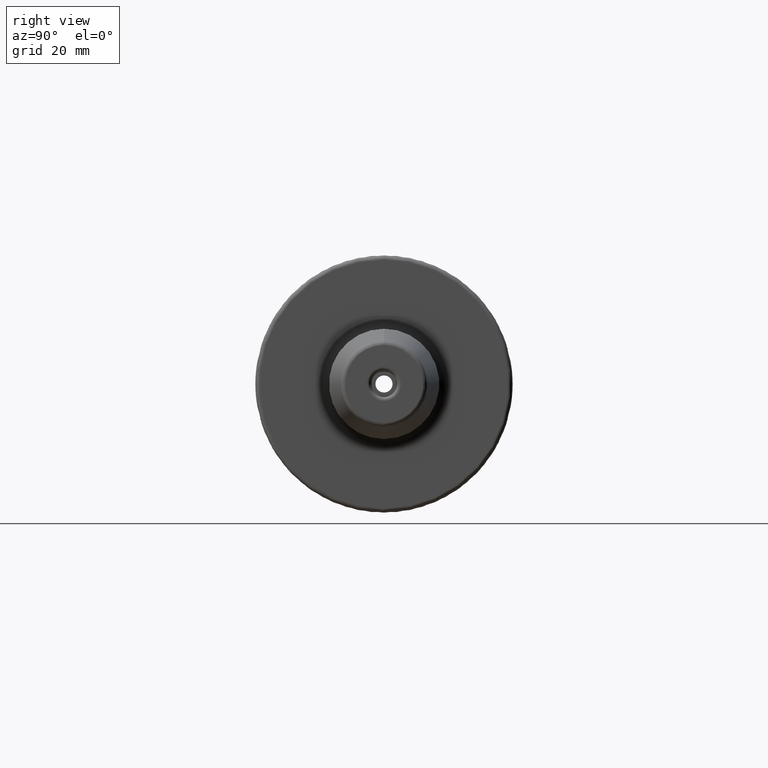
[diagram: clean part render]
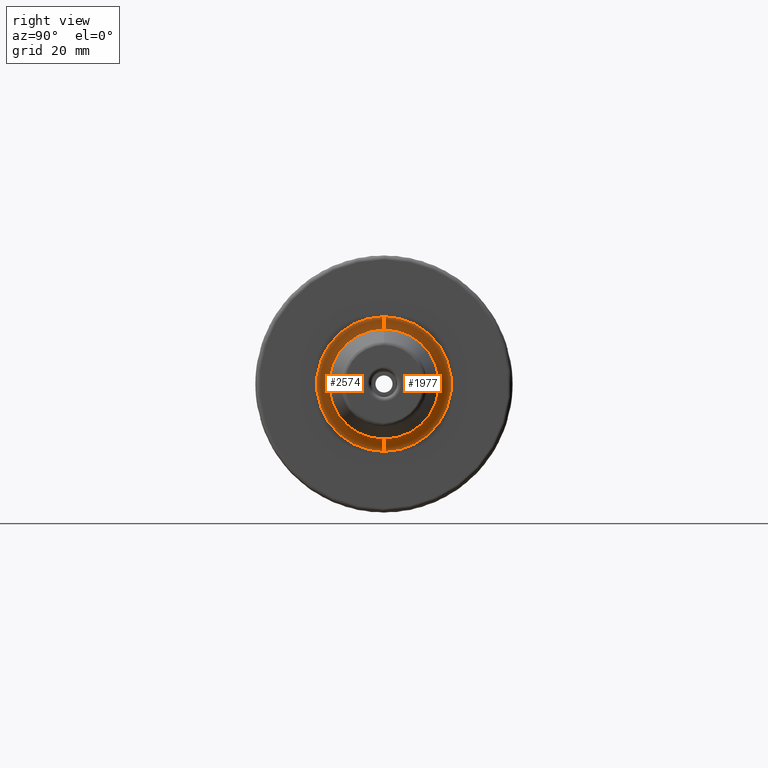
[diagram: same view with one multi-face feature highlighted, each face labeled with its STEP entity id]
A machine part, right view. The highlighted faces form ONE feature: a constant-radius fillet chain: 2 tangent blend faces with common blend radius 3 mm. The faces share edges in the B-rep.
Their STEP definitions:
[1] entity #1977 (Torus):
#468=CARTESIAN_POINT('',(3.E1,0.E0,0.E0));
#469=DIRECTION('',(1.E0,0.E0,0.E0));
#470=DIRECTION('',(0.E0,0.E0,-1.E0));
#471=AXIS2_PLACEMENT_3D('',#468,#469,#470);
#483=CARTESIAN_POINT('',(2.7E1,0.E0,0.E0));
#484=DIRECTION('',(1.E0,0.E0,0.E0));
#485=DIRECTION('',(0.E0,0.E0,-1.E0));
#486=AXIS2_PLACEMENT_3D('',#483,#484,#485);
#993=CARTESIAN_POINT('',(3.E1,0.E0,1.65E1));
#994=DIRECTION('',(0.E0,1.E0,0.E0));
#995=DIRECTION('',(0.E0,0.E0,-1.E0));
#996=AXIS2_PLACEMENT_3D('',#993,#994,#995);
#1003=CARTESIAN_POINT('',(3.E1,0.E0,-1.65E1));
#1004=DIRECTION('',(0.E0,-1.E0,0.E0));
#1005=DIRECTION('',(0.E0,0.E0,1.E0));
#1006=AXIS2_PLACEMENT_3D('',#1003,#1004,#1005);
#1213=CARTESIAN_POINT('',(3.E1,0.E0,-1.35E1));
#1214=VERTEX_POINT('',#1213);
#1235=CARTESIAN_POINT('',(3.E1,0.E0,1.35E1));
#1236=VERTEX_POINT('',#1235);
#1245=CARTESIAN_POINT('',(2.7E1,0.E0,-1.65E1));
#1246=CARTESIAN_POINT('',(2.7E1,0.E0,1.65E1));
#1247=VERTEX_POINT('',#1245);
#1248=VERTEX_POINT('',#1246);
#1963=CARTESIAN_POINT('',(3.E1,0.E0,0.E0));
#1964=DIRECTION('',(1.E0,0.E0,0.E0));
#1965=DIRECTION('',(0.E0,0.E0,1.E0));
#1966=AXIS2_PLACEMENT_3D('',#1963,#1964,#1965);
#1967=TOROIDAL_SURFACE('',#1966,1.65E1,3.E0);
#1969=ORIENTED_EDGE('',*,*,#1968,.F.);
#1971=ORIENTED_EDGE('',*,*,#1970,.F.);
#1972=ORIENTED_EDGE('',*,*,#1958,.T.);
#1974=ORIENTED_EDGE('',*,*,#1973,.T.);
#1975=EDGE_LOOP('',(#1969,#1971,#1972,#1974));
#1976=FACE_OUTER_BOUND('',#1975,.F.);
#1977=ADVANCED_FACE('',(#1976),#1967,.F.);
#472=CIRCLE('',#471,1.35E1);
#487=CIRCLE('',#486,1.65E1);
#997=CIRCLE('',#996,3.E0);
#1007=CIRCLE('',#1006,3.E0);
#1958=EDGE_CURVE('',#1214,#1236,#472,.T.);
#1968=EDGE_CURVE('',#1247,#1248,#487,.T.);
#1970=EDGE_CURVE('',#1214,#1247,#1007,.T.);
#1973=EDGE_CURVE('',#1236,#1248,#997,.T.);
[2] entity #2574 (Torus):
#488=CARTESIAN_POINT('',(2.7E1,0.E0,0.E0));
#489=DIRECTION('',(1.E0,0.E0,0.E0));
#490=DIRECTION('',(0.E0,0.E0,1.E0));
#491=AXIS2_PLACEMENT_3D('',#488,#489,#490);
#993=CARTESIAN_POINT('',(3.E1,0.E0,1.65E1));
#994=DIRECTION('',(0.E0,1.E0,0.E0));
#995=DIRECTION('',(0.E0,0.E0,-1.E0));
#996=AXIS2_PLACEMENT_3D('',#993,#994,#995);
#998=CARTESIAN_POINT('',(3.E1,0.E0,0.E0));
#999=DIRECTION('',(-1.E0,0.E0,0.E0));
#1000=DIRECTION('',(0.E0,0.E0,-1.E0));
#1001=AXIS2_PLACEMENT_3D('',#998,#999,#1000);
#1003=CARTESIAN_POINT('',(3.E1,0.E0,-1.65E1));
#1004=DIRECTION('',(0.E0,-1.E0,0.E0));
#1005=DIRECTION('',(0.E0,0.E0,1.E0));
#1006=AXIS2_PLACEMENT_3D('',#1003,#1004,#1005);
#1213=CARTESIAN_POINT('',(3.E1,0.E0,-1.35E1));
#1214=VERTEX_POINT('',#1213);
#1235=CARTESIAN_POINT('',(3.E1,0.E0,1.35E1));
#1236=VERTEX_POINT('',#1235);
#1245=CARTESIAN_POINT('',(2.7E1,0.E0,-1.65E1));
#1246=CARTESIAN_POINT('',(2.7E1,0.E0,1.65E1));
#1247=VERTEX_POINT('',#1245);
#1248=VERTEX_POINT('',#1246);
#2563=CARTESIAN_POINT('',(3.E1,0.E0,0.E0));
#2564=DIRECTION('',(1.E0,0.E0,0.E0));
#2565=DIRECTION('',(0.E0,0.E0,1.E0));
#2566=AXIS2_PLACEMENT_3D('',#2563,#2564,#2565);
#2567=TOROIDAL_SURFACE('',#2566,1.65E1,3.E0);
#2568=ORIENTED_EDGE('',*,*,#1990,.F.);
#2569=ORIENTED_EDGE('',*,*,#1973,.F.);
#2570=ORIENTED_EDGE('',*,*,#1942,.F.);
#2571=ORIENTED_EDGE('',*,*,#1970,.T.);
#2572=EDGE_LOOP('',(#2568,#2569,#2570,#2571));
#2573=FACE_OUTER_BOUND('',#2572,.F.);
#2574=ADVANCED_FACE('',(#2573),#2567,.F.);
#492=CIRCLE('',#491,1.65E1);
#997=CIRCLE('',#996,3.E0);
#1002=CIRCLE('',#1001,1.35E1);
#1007=CIRCLE('',#1006,3.E0);
#1942=EDGE_CURVE('',#1214,#1236,#1002,.T.);
#1970=EDGE_CURVE('',#1214,#1247,#1007,.T.);
#1973=EDGE_CURVE('',#1236,#1248,#997,.T.);
#1990=EDGE_CURVE('',#1248,#1247,#492,.T.);